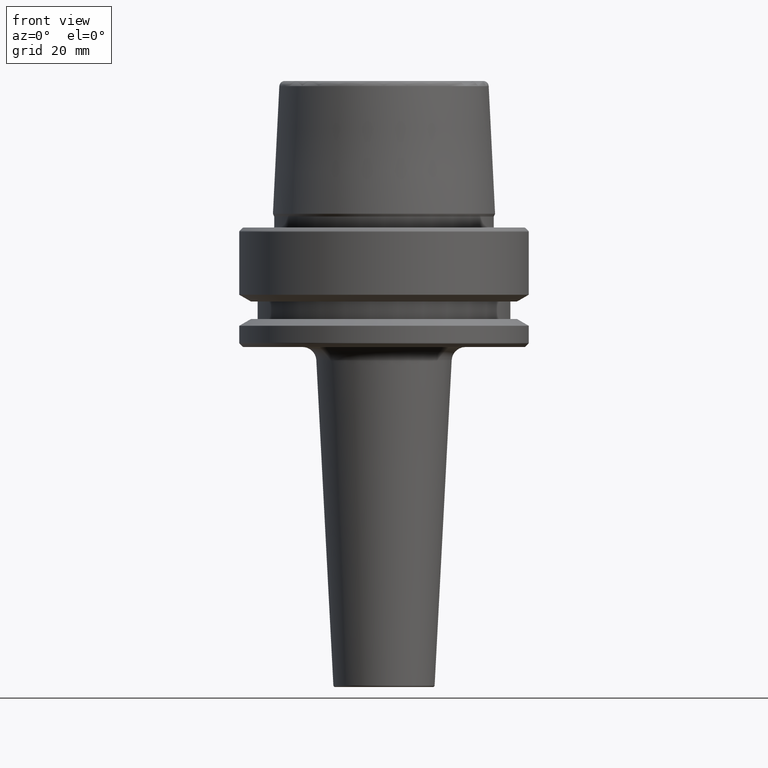
[diagram: clean part render]
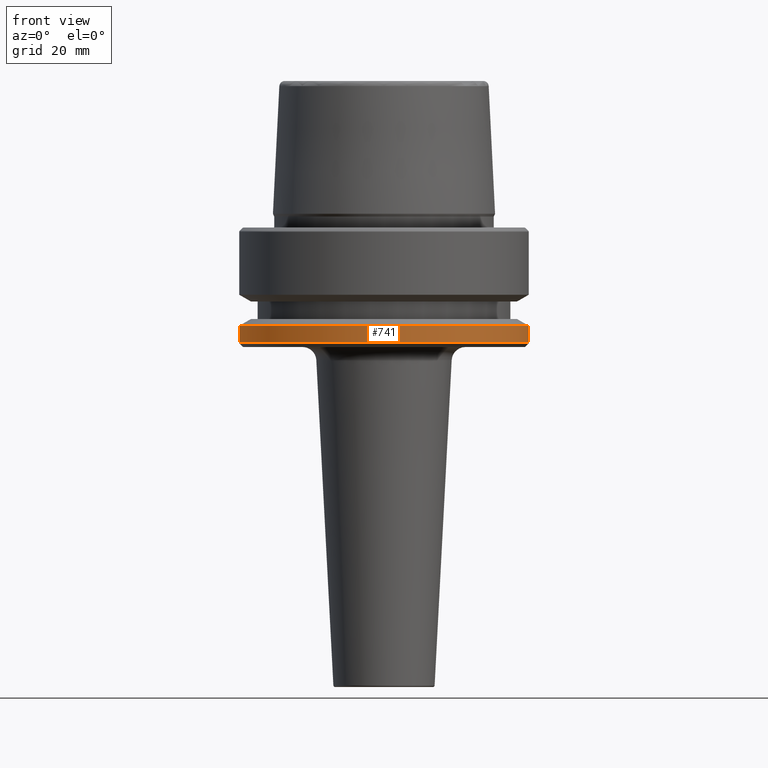
[diagram: same view with one face highlighted and labeled with its STEP entity id]
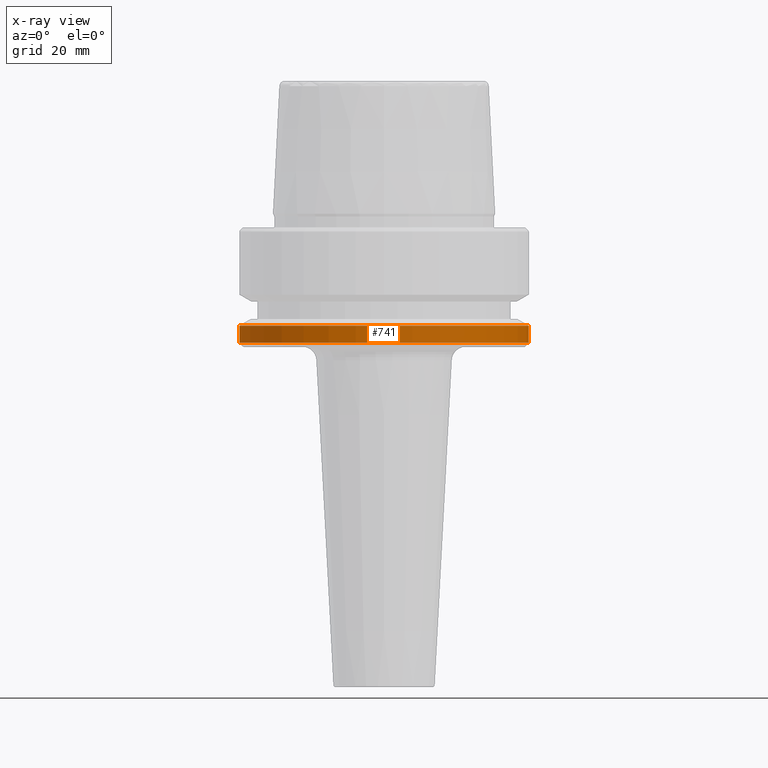
[diagram: x-ray of the same camera — body ghosted, the highlighted face saturated]
A machine part, front view. The second image highlights one B-rep face of the part: STEP entity #741.
The next image is the same camera in x-ray: the body ghosted, the highlighted face saturated — about 0% of this face is hidden behind the body in this view.
In plain terms, the highlighted cylindrical surface (partial cylindrical patch) has radius 31.5 mm, axis along (-0, -0, 1).
Its self-contained STEP definition (entity closure, byte-faithful):
#2 = DIRECTION ( 'NONE',  ( -0.0000000000000000000, -0.0000000000000000000, 1.000000000000000000 ) ) ;
#19 = EDGE_CURVE ( 'NONE', #959, #244, #145, .T. ) ;
#71 = LINE ( 'NONE', #1018, #600 ) ;
#145 = LINE ( 'NONE', #986, #583 ) ;
#149 = CIRCLE ( 'NONE', #514, 31.50000000000000000 ) ;
#162 = ORIENTED_EDGE ( 'NONE', *, *, #284, .F. ) ;
#178 = AXIS2_PLACEMENT_3D ( 'NONE', #696, #1099, #529 ) ;
#244 = VERTEX_POINT ( 'NONE', #1046 ) ;
#284 = EDGE_CURVE ( 'NONE', #244, #790, #1121, .T. ) ;
#328 = CARTESIAN_POINT ( 'NONE',  ( 0.0000000000000000000, 0.0000000000000000000, 78.96908074195309300 ) ) ;
#369 = CYLINDRICAL_SURFACE ( 'NONE', #1128, 31.50000000000000000 ) ;
#425 = EDGE_LOOP ( 'NONE', ( #1155, #766, #869, #162 ) ) ;
#432 = CARTESIAN_POINT ( 'NONE',  ( 31.50000000000000000, 0.0000000000000000000, -25.03431457505077200 ) ) ;
#454 = FACE_OUTER_BOUND ( 'NONE', #425, .T. ) ;
#486 = CARTESIAN_POINT ( 'NONE',  ( 31.50000000000000000, 0.0000000000000000000, -21.37749907475931700 ) ) ;
#514 = AXIS2_PLACEMENT_3D ( 'NONE', #528, #630, #1196 ) ;
#528 = CARTESIAN_POINT ( 'NONE',  ( 0.0000000000000000000, 0.0000000000000000000, -25.03431457505077200 ) ) ;
#529 = DIRECTION ( 'NONE',  ( 1.000000000000000000, 0.0000000000000000000, 0.0000000000000000000 ) ) ;
#570 = CARTESIAN_POINT ( 'NONE',  ( -31.50000000000000000, 3.857637417314161900E-015, -25.03431457505077200 ) ) ;
#583 = VECTOR ( 'NONE', #1082, 1000.000000000000000 ) ;
#600 = VECTOR ( 'NONE', #1249, 1000.000000000000000 ) ;
#630 = DIRECTION ( 'NONE',  ( -0.0000000000000000000, -0.0000000000000000000, 1.000000000000000000 ) ) ;
#696 = CARTESIAN_POINT ( 'NONE',  ( 0.0000000000000000000, 0.0000000000000000000, -21.37749907475931700 ) ) ;
#741 = ADVANCED_FACE ( 'NONE', ( #454 ), #369, .T. ) ;
#766 = ORIENTED_EDGE ( 'NONE', *, *, #958, .T. ) ;
#790 = VERTEX_POINT ( 'NONE', #486 ) ;
#869 = ORIENTED_EDGE ( 'NONE', *, *, #1254, .T. ) ;
#902 = DIRECTION ( 'NONE',  ( 1.000000000000000000, 0.0000000000000000000, 0.0000000000000000000 ) ) ;
#958 = EDGE_CURVE ( 'NONE', #959, #1040, #149, .T. ) ;
#959 = VERTEX_POINT ( 'NONE', #570 ) ;
#986 = CARTESIAN_POINT ( 'NONE',  ( -31.50000000000000000, 3.857637417314162700E-015, 78.96908074195309300 ) ) ;
#1018 = CARTESIAN_POINT ( 'NONE',  ( 31.50000000000000000, 0.0000000000000000000, 78.96908074195309300 ) ) ;
#1040 = VERTEX_POINT ( 'NONE', #432 ) ;
#1046 = CARTESIAN_POINT ( 'NONE',  ( -31.50000000000000000, 3.857637417314162700E-015, -21.37749907475931700 ) ) ;
#1082 = DIRECTION ( 'NONE',  ( -0.0000000000000000000, -0.0000000000000000000, 1.000000000000000000 ) ) ;
#1099 = DIRECTION ( 'NONE',  ( -0.0000000000000000000, -0.0000000000000000000, 1.000000000000000000 ) ) ;
#1121 = CIRCLE ( 'NONE', #178, 31.50000000000000000 ) ;
#1128 = AXIS2_PLACEMENT_3D ( 'NONE', #328, #2, #902 ) ;
#1155 = ORIENTED_EDGE ( 'NONE', *, *, #19, .F. ) ;
#1196 = DIRECTION ( 'NONE',  ( 1.000000000000000000, 0.0000000000000000000, 0.0000000000000000000 ) ) ;
#1249 = DIRECTION ( 'NONE',  ( -0.0000000000000000000, -0.0000000000000000000, 1.000000000000000000 ) ) ;
#1254 = EDGE_CURVE ( 'NONE', #1040, #790, #71, .T. ) ;